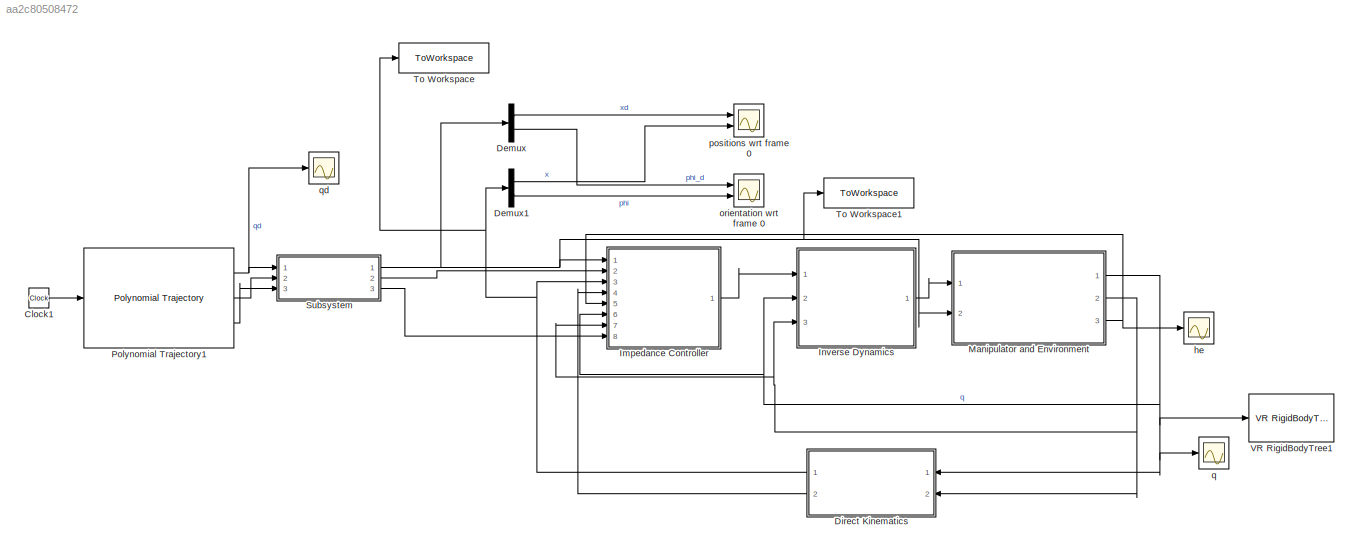
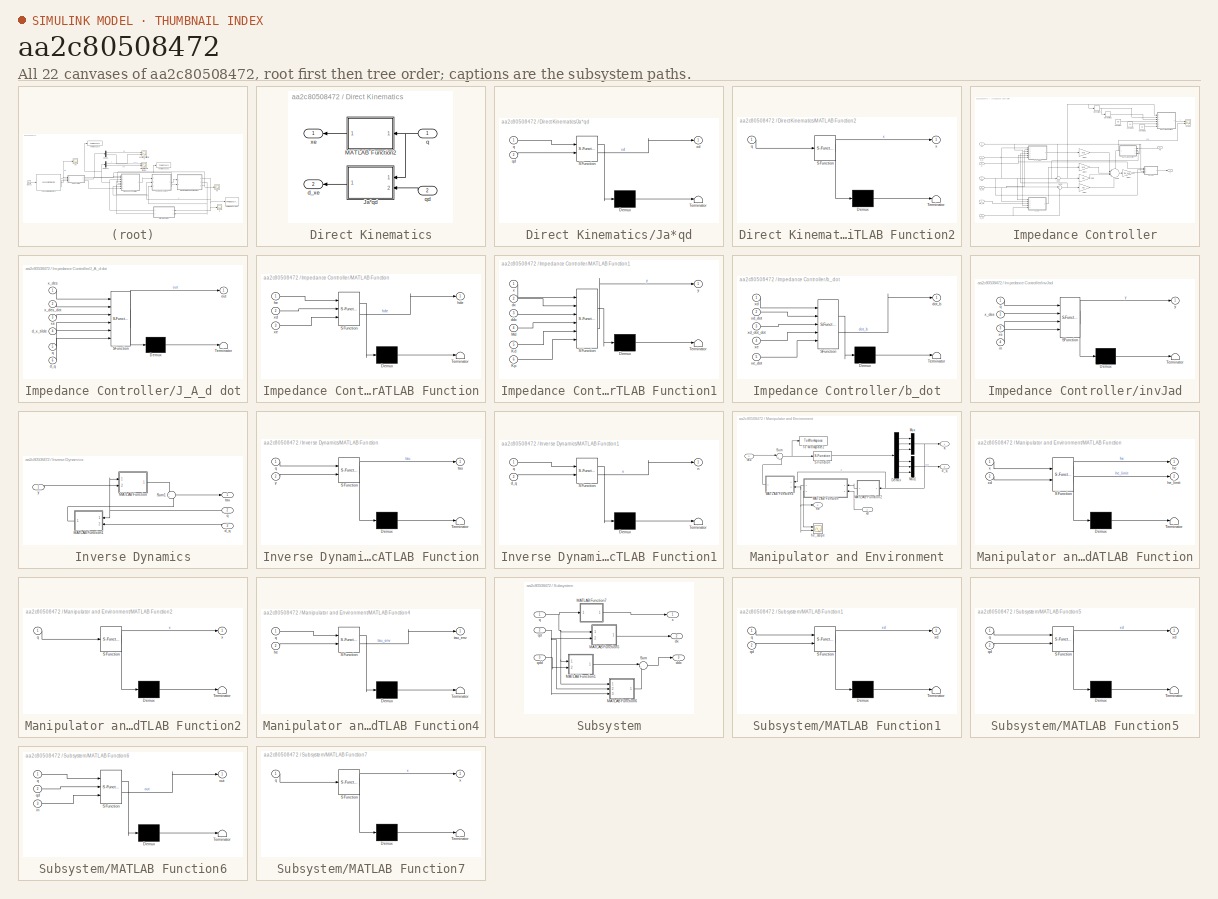
[diagram: thumbnail index - all 22 canvases of the model, root first then tree order]
MODEL slx_aa2c80508472
KIND model
CONFIG AbsTol = auto
CONFIG EnableMultiTasking = off
CONFIG FixedStep = 0.005
CONFIG MaxStep = auto
CONFIG MinStep = auto
CONFIG RelTol = 1e-3
CONFIG SampleTimeConstraint = Unconstrained
CONFIG SolverName = FixedStepAuto
CONFIG StartTime = 0.0
CONFIG StopTime = 5
BLOCK [Clock] Clock1
BLOCK [Demux] Demux
  Outputs = 2
  Ports = [1, 2]
BLOCK [Demux] Demux1
  Outputs = 2
  Ports = [1, 2]
BLOCK [SubSystem] Direct Kinematics
  Ports = [2, 2]
  RequestExecContextInheritance = off
BLOCK [SubSystem] Direct Kinematics/Ja*qd
  ErrorFcn = Stateflow.Translate.translate
  PermitHierarchicalResolution = ExplicitOnly
  Ports = [2, 1]
  RequestExecContextInheritance = off
  SFBlockType = MATLAB Function
  TreatAsAtomicUnit = on
BLOCK [Demux] Direct Kinematics/Ja*qd/ Demux 
  Outputs = 1
  Ports = [1, 1]
BLOCK [S-Function] Direct Kinematics/Ja*qd/ SFunction 
  EnableBusSupport = on
  FunctionName = sf_sfun
  Parameters = param
  PortCounts = [2 2]
  Ports = [2, 2]
  SFcnIsStateOwnerBlock = off
  SFunctionDeploymentMode = off
  Tag = Stateflow S-Function 12
BLOCK [Terminator] Direct Kinematics/Ja*qd/ Terminator 
BLOCK [Inport] Direct Kinematics/Ja*qd/q
BLOCK [Inport] Direct Kinematics/Ja*qd/qd
  Port = 2
BLOCK [Outport] Direct Kinematics/Ja*qd/xd
BLOCK [SubSystem] Direct Kinematics/MATLAB Function2
  ErrorFcn = Stateflow.Translate.translate
  PermitHierarchicalResolution = ExplicitOnly
  Ports = [1, 1]
  RequestExecContextInheritance = off
  SFBlockType = MATLAB Function
  TreatAsAtomicUnit = on
BLOCK [Demux] Direct Kinematics/MATLAB Function2/ Demux 
  Outputs = 1
  Ports = [1, 1]
BLOCK [S-Function] Direct Kinematics/MATLAB Function2/ SFunction 
  EnableBusSupport = on
  FunctionName = sf_sfun
  Parameters = param
  PortCounts = [1 2]
  Ports = [1, 2]
  SFcnIsStateOwnerBlock = off
  SFunctionDeploymentMode = off
  Tag = Stateflow S-Function 11
BLOCK [Terminator] Direct Kinematics/MATLAB Function2/ Terminator 
BLOCK [Inport] Direct Kinematics/MATLAB Function2/q
BLOCK [Outport] Direct Kinematics/MATLAB Function2/x
BLOCK [Outport] Direct Kinematics/d_xe
  Port = 2
BLOCK [Inport] Direct Kinematics/q
BLOCK [Inport] Direct Kinematics/qd
  Port = 2
BLOCK [Outport] Direct Kinematics/xe
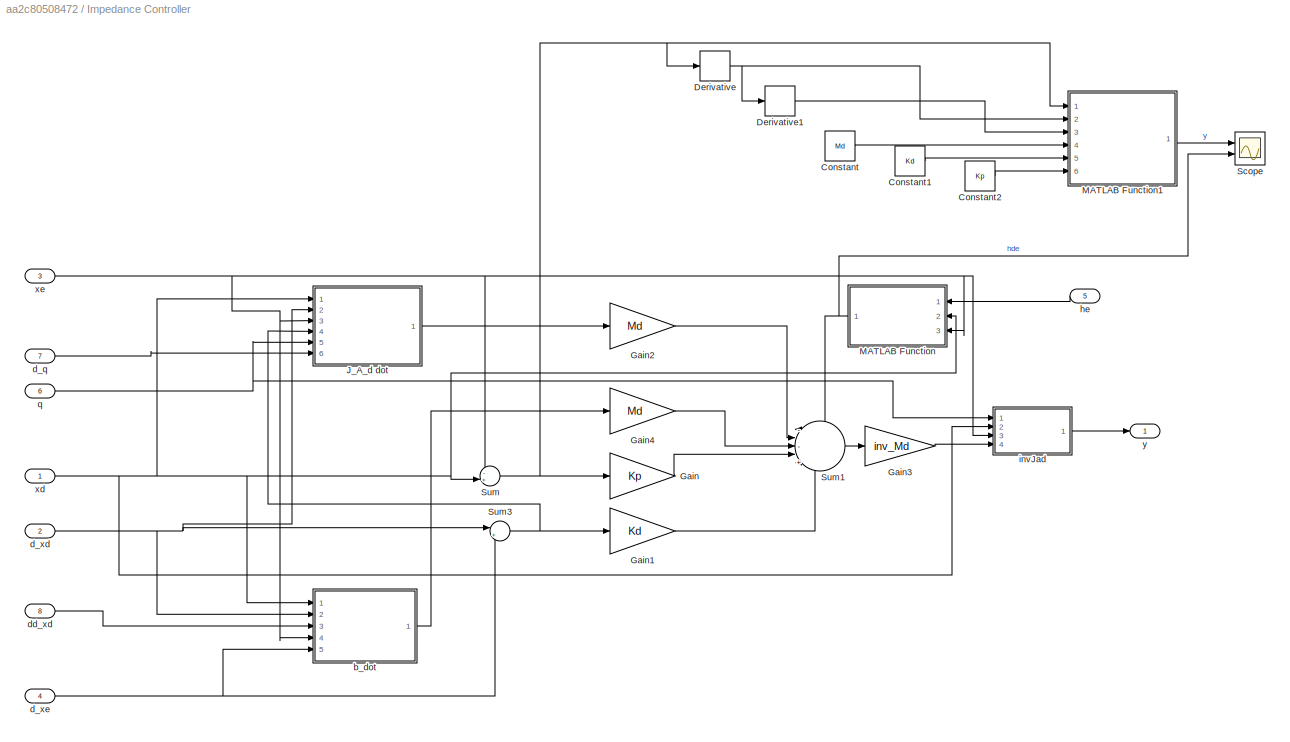
BLOCK [SubSystem] Impedance Controller
  Ports = [8, 1]
  RequestExecContextInheritance = off
BLOCK [Constant] Impedance Controller/Constant
  Commented = on
  Value = Md
BLOCK [Constant] Impedance Controller/Constant1
  Commented = on
  Value = Kd
BLOCK [Constant] Impedance Controller/Constant2
  Commented = on
  Value = Kp
BLOCK [Derivative] Impedance Controller/Derivative
  Commented = on
BLOCK [Derivative] Impedance Controller/Derivative1
  Commented = on
BLOCK [Gain] Impedance Controller/Gain
  Gain = Kp
  Multiplication = Matrix(K*u)
BLOCK [Gain] Impedance Controller/Gain1
  Gain = Kd
  Multiplication = Matrix(K*u)
BLOCK [Gain] Impedance Controller/Gain2
  Gain = Md
  Multiplication = Matrix(K*u)
BLOCK [Gain] Impedance Controller/Gain3
  Gain = inv_Md
  Multiplication = Matrix(K*u)
BLOCK [Gain] Impedance Controller/Gain4
  Gain = Md
  Multiplication = Matrix(K*u)
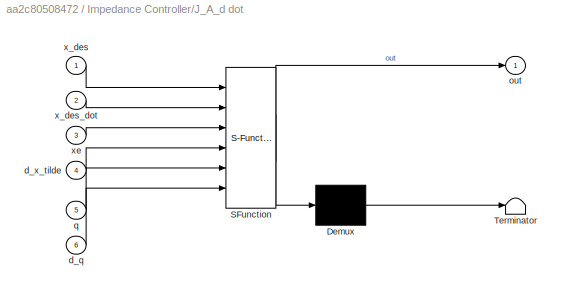
BLOCK [SubSystem] Impedance Controller/J_A_d dot
  ErrorFcn = Stateflow.Translate.translate
  PermitHierarchicalResolution = ExplicitOnly
  Ports = [6, 1]
  RequestExecContextInheritance = off
  SFBlockType = MATLAB Function
  TreatAsAtomicUnit = on
BLOCK [Demux] Impedance Controller/J_A_d dot/ Demux 
  Outputs = 1
  Ports = [1, 1]
BLOCK [S-Function] Impedance Controller/J_A_d dot/ SFunction 
  EnableBusSupport = on
  FunctionName = sf_sfun
  Parameters = param
  PortCounts = [6 2]
  Ports = [6, 2]
  SFcnIsStateOwnerBlock = off
  SFunctionDeploymentMode = off
  Tag = Stateflow S-Function 13
BLOCK [Terminator] Impedance Controller/J_A_d dot/ Terminator 
BLOCK [Inport] Impedance Controller/J_A_d dot/d_q
  Port = 6
BLOCK [Inport] Impedance Controller/J_A_d dot/d_x_tilde
  Port = 4
BLOCK [Outport] Impedance Controller/J_A_d dot/out
BLOCK [Inport] Impedance Controller/J_A_d dot/q
  Port = 5
BLOCK [Inport] Impedance Controller/J_A_d dot/x_des
BLOCK [Inport] Impedance Controller/J_A_d dot/x_des_dot
  Port = 2
BLOCK [Inport] Impedance Controller/J_A_d dot/xe
  Port = 3
BLOCK [SubSystem] Impedance Controller/MATLAB Function
  ErrorFcn = Stateflow.Translate.translate
  PermitHierarchicalResolution = ExplicitOnly
  Ports = [3, 1]
  RequestExecContextInheritance = off
  SFBlockType = MATLAB Function
  TreatAsAtomicUnit = on
BLOCK [Demux] Impedance Controller/MATLAB Function/ Demux 
  Outputs = 1
  Ports = [1, 1]
BLOCK [S-Function] Impedance Controller/MATLAB Function/ SFunction 
  EnableBusSupport = on
  FunctionName = sf_sfun
  PortCounts = [3 2]
  Ports = [3, 2]
  SFcnIsStateOwnerBlock = off
  SFunctionDeploymentMode = off
  Tag = Stateflow S-Function 10
BLOCK [Terminator] Impedance Controller/MATLAB Function/ Terminator 
BLOCK [Outport] Impedance Controller/MATLAB Function/hde
BLOCK [Inport] Impedance Controller/MATLAB Function/he
BLOCK [Inport] Impedance Controller/MATLAB Function/xd
  Port = 2
BLOCK [Inport] Impedance Controller/MATLAB Function/xe
  Port = 3
BLOCK [SubSystem] Impedance Controller/MATLAB Function1
  Commented = on
  ErrorFcn = Stateflow.Translate.translate
  PermitHierarchicalResolution = ExplicitOnly
  Ports = [6, 1]
  RequestExecContextInheritance = off
  SFBlockType = MATLAB Function
  TreatAsAtomicUnit = on
BLOCK [Demux] Impedance Controller/MATLAB Function1/ Demux 
  Outputs = 1
  Ports = [1, 1]
BLOCK [S-Function] Impedance Controller/MATLAB Function1/ SFunction 
  EnableBusSupport = on
  FunctionName = sf_sfun
  PortCounts = [6 2]
  Ports = [6, 2]
  SFcnIsStateOwnerBlock = off
  SFunctionDeploymentMode = off
  Tag = Stateflow S-Function 6
BLOCK [Terminator] Impedance Controller/MATLAB Function1/ Terminator 
BLOCK [Inport] Impedance Controller/MATLAB Function1/Kd
  Port = 5
BLOCK [Inport] Impedance Controller/MATLAB Function1/Kp
  Port = 6
BLOCK [Inport] Impedance Controller/MATLAB Function1/Md
  Port = 4
BLOCK [Inport] Impedance Controller/MATLAB Function1/ddx
  Port = 3
BLOCK [Inport] Impedance Controller/MATLAB Function1/dx
  Port = 2
BLOCK [Inport] Impedance Controller/MATLAB Function1/x
BLOCK [Outport] Impedance Controller/MATLAB Function1/y
BLOCK [Scope] Impedance Controller/Scope
  Commented = on
  Floating = off
  NumInputPorts = 2
  Ports = [2]
  ScopeSpecificationString = Simulink.scopes.TimeScopeBlockCfg('CurrentConfiguration', extmgr.ConfigurationSet(extmgr.Configuration('Core','General UI',true),extmgr.Configuration('Core','Source UI',true),extmgr.Configuration('Sources','WiredSimulink',true,'DataLoggingVariableName','ScopeData1'),extmgr.Configuration('Visuals','Time Domain',true,'SerializedDisplays',{struct('MinYLimReal','-315736.79481','MaxYLimReal','315729.52...<+1851ch>
BLOCK [Sum] Impedance Controller/Sum
  Inputs = -+|
  Ports = [2, 1]
BLOCK [Sum] Impedance Controller/Sum1
  Inputs = -|-|+|+|+
  Ports = [5, 1]
BLOCK [Sum] Impedance Controller/Sum3
  Inputs = |+-
  Ports = [2, 1]
BLOCK [SubSystem] Impedance Controller/b_dot
  ErrorFcn = Stateflow.Translate.translate
  PermitHierarchicalResolution = ExplicitOnly
  Ports = [5, 1]
  RequestExecContextInheritance = off
  SFBlockType = MATLAB Function
  TreatAsAtomicUnit = on
BLOCK [Demux] Impedance Controller/b_dot/ Demux 
  Outputs = 1
  Ports = [1, 1]
BLOCK [S-Function] Impedance Controller/b_dot/ SFunction 
  EnableBusSupport = on
  FunctionName = sf_sfun
  PortCounts = [5 2]
  Ports = [5, 2]
  SFcnIsStateOwnerBlock = off
  SFunctionDeploymentMode = off
  Tag = Stateflow S-Function 14
BLOCK [Terminator] Impedance Controller/b_dot/ Terminator 
BLOCK [Outport] Impedance Controller/b_dot/dot_b
BLOCK [Inport] Impedance Controller/b_dot/xd
BLOCK [Inport] Impedance Controller/b_dot/xd_dot
  Port = 2
BLOCK [Inport] Impedance Controller/b_dot/xd_dot_dot
  Port = 3
BLOCK [Inport] Impedance Controller/b_dot/xe
  Port = 4
BLOCK [Inport] Impedance Controller/b_dot/xe_dot
  Port = 5
BLOCK [Inport] Impedance Controller/d_q
  NameLocation = top
  Port = 7
BLOCK [Inport] Impedance Controller/d_xd
  Port = 2
BLOCK [Inport] Impedance Controller/d_xe
  NameLocation = top
  Port = 4
BLOCK [Inport] Impedance Controller/dd_xd
  Port = 8
BLOCK [Inport] Impedance Controller/he
  Port = 5
BLOCK [SubSystem] Impedance Controller/invJad
  ErrorFcn = Stateflow.Translate.translate
  PermitHierarchicalResolution = ExplicitOnly
  Ports = [4, 1]
  RequestExecContextInheritance = off
  SFBlockType = MATLAB Function
  TreatAsAtomicUnit = on
BLOCK [Demux] Impedance Controller/invJad/ Demux 
  Outputs = 1
  Ports = [1, 1]
BLOCK [S-Function] Impedance Controller/invJad/ SFunction 
  EnableBusSupport = on
  FunctionName = sf_sfun
  Parameters = param
  PortCounts = [4 2]
  Ports = [4, 2]
  SFcnIsStateOwnerBlock = off
  SFunctionDeploymentMode = off
  Tag = Stateflow S-Function 9
BLOCK [Terminator] Impedance Controller/invJad/ Terminator 
BLOCK [Inport] Impedance Controller/invJad/in
  Port = 4
BLOCK [Inport] Impedance Controller/invJad/q
BLOCK [Inport] Impedance Controller/invJad/x_des
  Port = 2
BLOCK [Inport] Impedance Controller/invJad/xe
  Port = 3
BLOCK [Outport] Impedance Controller/invJad/y
BLOCK [Inport] Impedance Controller/q
  NameLocation = top
  Port = 6
BLOCK [Inport] Impedance Controller/xd
BLOCK [Inport] Impedance Controller/xe
  NameLocation = top
  Port = 3
BLOCK [Outport] Impedance Controller/y
BLOCK [SubSystem] Inverse Dynamics
  Ports = [3, 1]
  RequestExecContextInheritance = off
BLOCK [SubSystem] Inverse Dynamics/MATLAB Function
  ErrorFcn = Stateflow.Translate.translate
  PermitHierarchicalResolution = ExplicitOnly
  Ports = [2, 1]
  RequestExecContextInheritance = off
  SFBlockType = MATLAB Function
  TreatAsAtomicUnit = on
BLOCK [Demux] Inverse Dynamics/MATLAB Function/ Demux 
  Outputs = 1
  Ports = [1, 1]
BLOCK [S-Function] Inverse Dynamics/MATLAB Function/ SFunction 
  EnableBusSupport = on
  FunctionName = sf_sfun
  Parameters = param
  PortCounts = [2 2]
  Ports = [2, 2]
  SFcnIsStateOwnerBlock = off
  SFunctionDeploymentMode = off
  Tag = Stateflow S-Function 8
BLOCK [Terminator] Inverse Dynamics/MATLAB Function/ Terminator 
BLOCK [Inport] Inverse Dynamics/MATLAB Function/q
BLOCK [Outport] Inverse Dynamics/MATLAB Function/tau
BLOCK [Inport] Inverse Dynamics/MATLAB Function/y
  Port = 2
BLOCK [SubSystem] Inverse Dynamics/MATLAB Function1
  ErrorFcn = Stateflow.Translate.translate
  PermitHierarchicalResolution = ExplicitOnly
  Ports = [2, 1]
  RequestExecContextInheritance = off
  SFBlockType = MATLAB Function
  TreatAsAtomicUnit = on
BLOCK [Demux] Inverse Dynamics/MATLAB Function1/ Demux 
  Outputs = 1
  Ports = [1, 1]
BLOCK [S-Function] Inverse Dynamics/MATLAB Function1/ SFunction 
  EnableBusSupport = on
  FunctionName = sf_sfun
  Parameters = param
  PortCounts = [2 2]
  Ports = [2, 2]
  SFcnIsStateOwnerBlock = off
  SFunctionDeploymentMode = off
  Tag = Stateflow S-Function 15
BLOCK [Terminator] Inverse Dynamics/MATLAB Function1/ Terminator 
BLOCK [Inport] Inverse Dynamics/MATLAB Function1/d_q
  Port = 2
BLOCK [Outport] Inverse Dynamics/MATLAB Function1/n
BLOCK [Inport] Inverse Dynamics/MATLAB Function1/q
BLOCK [Sum] Inverse Dynamics/Sum1
  Ports = [2, 1]
BLOCK [Inport] Inverse Dynamics/d_q
  Port = 3
BLOCK [Inport] Inverse Dynamics/q
  Port = 2
BLOCK [Outport] Inverse Dynamics/tau
BLOCK [Inport] Inverse Dynamics/y
BLOCK [SubSystem] Manipulator and Environment
  Ports = [2, 3]
  RequestExecContextInheritance = off
BLOCK [Demux] Manipulator and Environment/Demux
  Outputs = 6
  Ports = [1, 6]
BLOCK [SubSystem] Manipulator and Environment/MATLAB Function
  ErrorFcn = Stateflow.Translate.translate
  PermitHierarchicalResolution = ExplicitOnly
  Ports = [2, 2]
  RequestExecContextInheritance = off
  SFBlockType = MATLAB Function
  TreatAsAtomicUnit = on
BLOCK [Demux] Manipulator and Environment/MATLAB Function/ Demux 
  Outputs = 1
  Ports = [1, 1]
BLOCK [S-Function] Manipulator and Environment/MATLAB Function/ SFunction 
  EnableBusSupport = on
  FunctionName = sf_sfun
  Parameters = param
  PortCounts = [2 3]
  Ports = [2, 3]
  SFcnIsStateOwnerBlock = off
  SFunctionDeploymentMode = off
  Tag = Stateflow S-Function 17
BLOCK [Terminator] Manipulator and Environment/MATLAB Function/ Terminator 
BLOCK [Outport] Manipulator and Environment/MATLAB Function/he
BLOCK [Outport] Manipulator and Environment/MATLAB Function/he_limit
  Port = 2
BLOCK [Inport] Manipulator and Environment/MATLAB Function/x
BLOCK [Inport] Manipulator and Environment/MATLAB Function/xd
  Port = 2
BLOCK [SubSystem] Manipulator and Environment/MATLAB Function2
  ErrorFcn = Stateflow.Translate.translate
  PermitHierarchicalResolution = ExplicitOnly
  Ports = [1, 1]
  RequestExecContextInheritance = off
  SFBlockType = MATLAB Function
  TreatAsAtomicUnit = on
BLOCK [Demux] Manipulator and Environment/MATLAB Function2/ Demux 
  Outputs = 1
  Ports = [1, 1]
BLOCK [S-Function] Manipulator and Environment/MATLAB Function2/ SFunction 
  EnableBusSupport = on
  FunctionName = sf_sfun
  Parameters = param
  PortCounts = [1 2]
  Ports = [1, 2]
  SFcnIsStateOwnerBlock = off
  SFunctionDeploymentMode = off
  Tag = Stateflow S-Function 18
BLOCK [Terminator] Manipulator and Environment/MATLAB Function2/ Terminator 
BLOCK [Inport] Manipulator and Environment/MATLAB Function2/q
BLOCK [Outport] Manipulator and Environment/MATLAB Function2/x
BLOCK [SubSystem] Manipulator and Environment/MATLAB Function4
  ErrorFcn = Stateflow.Translate.translate
  PermitHierarchicalResolution = ExplicitOnly
  Ports = [2, 1]
  RequestExecContextInheritance = off
  SFBlockType = MATLAB Function
  TreatAsAtomicUnit = on
BLOCK [Demux] Manipulator and Environment/MATLAB Function4/ Demux 
  Outputs = 1
  Ports = [1, 1]
BLOCK [S-Function] Manipulator and Environment/MATLAB Function4/ SFunction 
  EnableBusSupport = on
  FunctionName = sf_sfun
  Parameters = param
  PortCounts = [2 2]
  Ports = [2, 2]
  SFcnIsStateOwnerBlock = off
  SFunctionDeploymentMode = off
  Tag = Stateflow S-Function 5
BLOCK [Terminator] Manipulator and Environment/MATLAB Function4/ Terminator 
BLOCK [Inport] Manipulator and Environment/MATLAB Function4/he
  Port = 2
BLOCK [Inport] Manipulator and Environment/MATLAB Function4/q
BLOCK [Outport] Manipulator and Environment/MATLAB Function4/tau_env
BLOCK [Mux] Manipulator and Environment/Mux
  DisplayOption = bar
  Inputs = 3
  Ports = [3, 1]
BLOCK [Mux] Manipulator and Environment/Mux1
  DisplayOption = bar
  Inputs = 3
  Ports = [3, 1]
BLOCK [S-Function] Manipulator and Environment/S-Function
  EnableBusSupport = off
  FunctionName = Manipulator
  Parameters = param
  Ports = [1, 1]
  SFcnIsStateOwnerBlock = off
  SFunctionDeploymentMode = off
BLOCK [Sum] Manipulator and Environment/Sum
  Inputs = |++
  Ports = [2, 1]
BLOCK [ToWorkspace] Manipulator and Environment/To Workspace2
  FixptAsFi = on
  MaxDataPoints = inf
  Ports = [1]
  SampleTime = -1
  SaveFormat = Timeseries
  VariableName = tau
BLOCK [Outport] Manipulator and Environment/d_q
  Port = 2
BLOCK [Outport] Manipulator and Environment/he
  Port = 3
BLOCK [Scope] Manipulator and Environment/he_scope
  Floating = off
  NumInputPorts = 2
  Ports = [2]
  ScopeSpecificationString = Simulink.scopes.TimeScopeBlockCfg('CurrentConfiguration', extmgr.ConfigurationSet(extmgr.Configuration('Core','General UI',true),extmgr.Configuration('Core','Source UI',true),extmgr.Configuration('Sources','WiredSimulink',true,'DataLoggingVariableName','ScopeData1'),extmgr.Configuration('Visuals','Time Domain',true,'SerializedDisplays',{struct('MinYLimReal','-0.75','MaxYLimReal','6.75','YLabelReal...<+1996ch>
BLOCK [Outport] Manipulator and Environment/q
BLOCK [Inport] Manipulator and Environment/tau
BLOCK [Inport] Manipulator and Environment/xd
  NameLocation = top
  Port = 2
BLOCK [Reference] Polynomial Trajectory1  REF=robotcorelib/Polynomial Trajectory
  Ports = [1, 3]
  SourceBlock = robotcorelib/Polynomial Trajectory
  SourceProductBaseCode = NV,RO,RR,UV
  SourceType = robotics.slcore.internal.block.PolyTrajSys
BLOCK [SubSystem] Subsystem
  Ports = [3, 3]
  RequestExecContextInheritance = off
BLOCK [SubSystem] Subsystem/MATLAB Function1
  ErrorFcn = Stateflow.Translate.translate
  PermitHierarchicalResolution = ExplicitOnly
  Ports = [2, 1]
  RequestExecContextInheritance = off
  SFBlockType = MATLAB Function
  TreatAsAtomicUnit = on
BLOCK [Demux] Subsystem/MATLAB Function1/ Demux 
  Outputs = 1
  Ports = [1, 1]
BLOCK [S-Function] Subsystem/MATLAB Function1/ SFunction 
  EnableBusSupport = on
  FunctionName = sf_sfun
  Parameters = param
  PortCounts = [2 2]
  Ports = [2, 2]
  SFcnIsStateOwnerBlock = off
  SFunctionDeploymentMode = off
  Tag = Stateflow S-Function 1
BLOCK [Terminator] Subsystem/MATLAB Function1/ Terminator 
BLOCK [Inport] Subsystem/MATLAB Function1/q
BLOCK [Inport] Subsystem/MATLAB Function1/qd
  Port = 2
BLOCK [Outport] Subsystem/MATLAB Function1/xd
BLOCK [SubSystem] Subsystem/MATLAB Function5
  ErrorFcn = Stateflow.Translate.translate
  PermitHierarchicalResolution = ExplicitOnly
  Ports = [2, 1]
  RequestExecContextInheritance = off
  SFBlockType = MATLAB Function
  TreatAsAtomicUnit = on
BLOCK [Demux] Subsystem/MATLAB Function5/ Demux 
  Outputs = 1
  Ports = [1, 1]
BLOCK [S-Function] Subsystem/MATLAB Function5/ SFunction 
  EnableBusSupport = on
  FunctionName = sf_sfun
  Parameters = param
  PortCounts = [2 2]
  Ports = [2, 2]
  SFcnIsStateOwnerBlock = off
  SFunctionDeploymentMode = off
  Tag = Stateflow S-Function 2
BLOCK [Terminator] Subsystem/MATLAB Function5/ Terminator 
BLOCK [Inport] Subsystem/MATLAB Function5/q
BLOCK [Inport] Subsystem/MATLAB Function5/qd
  Port = 2
BLOCK [Outport] Subsystem/MATLAB Function5/xd
BLOCK [SubSystem] Subsystem/MATLAB Function6
  ErrorFcn = Stateflow.Translate.translate
  PermitHierarchicalResolution = ExplicitOnly
  Ports = [3, 1]
  RequestExecContextInheritance = off
  SFBlockType = MATLAB Function
  TreatAsAtomicUnit = on
BLOCK [Demux] Subsystem/MATLAB Function6/ Demux 
  Outputs = 1
  Ports = [1, 1]
BLOCK [S-Function] Subsystem/MATLAB Function6/ SFunction 
  EnableBusSupport = on
  FunctionName = sf_sfun
  Parameters = param
  PortCounts = [3 2]
  Ports = [3, 2]
  SFcnIsStateOwnerBlock = off
  SFunctionDeploymentMode = off
  Tag = Stateflow S-Function 3
BLOCK [Terminator] Subsystem/MATLAB Function6/ Terminator 
BLOCK [Inport] Subsystem/MATLAB Function6/in
  Port = 3
BLOCK [Outport] Subsystem/MATLAB Function6/out
BLOCK [Inport] Subsystem/MATLAB Function6/q
BLOCK [Inport] Subsystem/MATLAB Function6/qd
  Port = 2
BLOCK [SubSystem] Subsystem/MATLAB Function7
  ErrorFcn = Stateflow.Translate.translate
  NameLocation = top
  PermitHierarchicalResolution = ExplicitOnly
  Ports = [1, 1]
  RequestExecContextInheritance = off
  SFBlockType = MATLAB Function
  TreatAsAtomicUnit = on
BLOCK [Demux] Subsystem/MATLAB Function7/ Demux 
  Outputs = 1
  Ports = [1, 1]
BLOCK [S-Function] Subsystem/MATLAB Function7/ SFunction 
  EnableBusSupport = on
  FunctionName = sf_sfun
  Parameters = param
  PortCounts = [1 2]
  Ports = [1, 2]
  SFcnIsStateOwnerBlock = off
  SFunctionDeploymentMode = off
  Tag = Stateflow S-Function 4
BLOCK [Terminator] Subsystem/MATLAB Function7/ Terminator 
BLOCK [Inport] Subsystem/MATLAB Function7/q
BLOCK [Outport] Subsystem/MATLAB Function7/x
BLOCK [Sum] Subsystem/Sum
  Inputs = |++
  Ports = [2, 1]
BLOCK [Outport] Subsystem/ddx
  Port = 3
BLOCK [Outport] Subsystem/dx
  Port = 2
BLOCK [Inport] Subsystem/q
BLOCK [Inport] Subsystem/qd
  Port = 2
BLOCK [Inport] Subsystem/qdd
  Port = 3
BLOCK [Outport] Subsystem/x
BLOCK [ToWorkspace] To Workspace
  FixptAsFi = on
  MaxDataPoints = inf
  Ports = [1]
  SampleTime = -1
  SaveFormat = Timeseries
  VariableName = x
BLOCK [ToWorkspace] To Workspace1
  FixptAsFi = on
  MaxDataPoints = inf
  Ports = [1]
  SampleTime = -1
  SaveFormat = Timeseries
  VariableName = xd
BLOCK [Reference] VR RigidBodyTree1  REF=vrlib/VR RigidBodyTree
  Commented = on
  Ports = [1]
  SourceBlock = vrlib/VR RigidBodyTree
  SourceProductBaseCode = SL
  SourceType = VR RigidBodyTree
BLOCK [Scope] he
  Floating = off
  NumInputPorts = 1
  Ports = [1]
  ScopeSpecificationString = Simulink.scopes.TimeScopeBlockCfg('CurrentConfiguration', extmgr.ConfigurationSet(extmgr.Configuration('Core','General UI',true),extmgr.Configuration('Core','Source UI',true),extmgr.Configuration('Sources','WiredSimulink',true,'DataLoggingVariableName','ScopeData2'),extmgr.Configuration('Visuals','Time Domain',true,'SerializedDisplays',{struct('MinYLimReal','-0.02218','MaxYLimReal','0.19959','YLab...<+1760ch>
BLOCK [Scope] orientation wrt frame 0
  Floating = off
  NumInputPorts = 2
  Ports = [2]
  ScopeSpecificationString = Simulink.scopes.TimeScopeBlockCfg('CurrentConfiguration', extmgr.ConfigurationSet(extmgr.Configuration('Core','General UI',true),extmgr.Configuration('Core','Source UI',true),extmgr.Configuration('Sources','WiredSimulink',true,'DataLoggingVariableName','ScopeData1'),extmgr.Configuration('Visuals','Time Domain',true,'SerializedDisplays',{struct('MinYLimReal','-3.33794','MaxYLimReal','-1.37445','YLa...<+1602ch>
BLOCK [Scope] positions wrt frame 0
  Floating = off
  NumInputPorts = 2
  Ports = [2]
  ScopeSpecificationString = Simulink.scopes.TimeScopeBlockCfg('CurrentConfiguration', extmgr.ConfigurationSet(extmgr.Configuration('Core','General UI',true),extmgr.Configuration('Core','Source UI',true),extmgr.Configuration('Sources','WiredSimulink',true),extmgr.Configuration('Visuals','Time Domain',true,'SerializedDisplays',{struct('MinYLimReal','-0.08157','MaxYLimReal','0.73179','YLabelReal','','MinYLimMag','0.00000','MaxY...<+1593ch>
BLOCK [Scope] q
  Floating = off
  NumInputPorts = 1
  Ports = [1]
  ScopeSpecificationString = Simulink.scopes.TimeScopeBlockCfg('CurrentConfiguration', extmgr.ConfigurationSet(extmgr.Configuration('Core','General UI',true),extmgr.Configuration('Core','Source UI',true),extmgr.Configuration('Sources','WiredSimulink',true,'DataLoggingVariableName','ScopeData4'),extmgr.Configuration('Visuals','Time Domain',true,'SerializedDisplays',{struct('MinYLimReal','-0.00014','MaxYLimReal','0.00018','YLab...<+1457ch>
BLOCK [Scope] qd
  Floating = off
  NumInputPorts = 1
  Ports = [1]
  ScopeSpecificationString = Simulink.scopes.TimeScopeBlockCfg('CurrentConfiguration', extmgr.ConfigurationSet(extmgr.Configuration('Core','General UI',true),extmgr.Configuration('Core','Source UI',true),extmgr.Configuration('Sources','WiredSimulink',true,'DataLoggingVariableName','ScopeData3'),extmgr.Configuration('Visuals','Time Domain',true,'SerializedDisplays',{struct('MinYLimReal','-0.125','MaxYLimReal','0.125','YLabelRe...<+1477ch>
LINE Clock1:1 -> Polynomial Trajectory1:1
LINE Demux1:1 -> positions wrt frame 0:2
LINE Demux1:2 -> orientation wrt frame 0:2
LINE Demux:1 -> positions wrt frame 0:1
LINE Demux:2 -> orientation wrt frame 0:1
LINE Direct Kinematics/Ja*qd:1 -> Direct Kinematics/d_xe:1
LINE Direct Kinematics/MATLAB Function2:1 -> Direct Kinematics/xe:1
NET Direct Kinematics/q:1 -> Direct Kinematics/Ja*qd:1, Direct Kinematics/MATLAB Function2:1
LINE Direct Kinematics/qd:1 -> Direct Kinematics/Ja*qd:2
NET Direct Kinematics:1 -> Demux1:1, Impedance Controller:3, To Workspace:1
LINE Direct Kinematics:2 -> Impedance Controller:4
LINE Impedance Controller/Constant1:1 -> Impedance Controller/MATLAB Function1:5
LINE Impedance Controller/Constant2:1 -> Impedance Controller/MATLAB Function1:6
LINE Impedance Controller/Constant:1 -> Impedance Controller/MATLAB Function1:4
LINE Impedance Controller/Derivative1:1 -> Impedance Controller/MATLAB Function1:3
NET Impedance Controller/Derivative:1 -> Impedance Controller/Derivative1:1, Impedance Controller/MATLAB Function1:2
LINE Impedance Controller/Gain1:1 -> Impedance Controller/Sum1:5
LINE Impedance Controller/Gain2:1 -> Impedance Controller/Sum1:2
LINE Impedance Controller/Gain3:1 -> Impedance Controller/invJad:4
LINE Impedance Controller/Gain4:1 -> Impedance Controller/Sum1:3
LINE Impedance Controller/Gain:1 -> Impedance Controller/Sum1:4
LINE Impedance Controller/J_A_d dot:1 -> Impedance Controller/Gain2:1
LINE Impedance Controller/MATLAB Function1:1 -> Impedance Controller/Scope:1
NET Impedance Controller/MATLAB Function:1 -> Impedance Controller/Scope:2, Impedance Controller/Sum1:1
LINE Impedance Controller/Sum1:1 -> Impedance Controller/Gain3:1
NET Impedance Controller/Sum3:1 -> Impedance Controller/Gain1:1, Impedance Controller/J_A_d dot:4
NET Impedance Controller/Sum:1 -> Impedance Controller/Derivative:1, Impedance Controller/Gain:1, Impedance Controller/MATLAB Function1:1
LINE Impedance Controller/b_dot:1 -> Impedance Controller/Gain4:1
LINE Impedance Controller/d_q:1 -> Impedance Controller/J_A_d dot:6
NET Impedance Controller/d_xd:1 -> Impedance Controller/J_A_d dot:2, Impedance Controller/Sum3:1, Impedance Controller/b_dot:2
NET Impedance Controller/d_xe:1 -> Impedance Controller/Sum3:2, Impedance Controller/b_dot:5
LINE Impedance Controller/dd_xd:1 -> Impedance Controller/b_dot:3
LINE Impedance Controller/he:1 -> Impedance Controller/MATLAB Function:1
LINE Impedance Controller/invJad:1 -> Impedance Controller/y:1
NET Impedance Controller/q:1 -> Impedance Controller/J_A_d dot:5, Impedance Controller/invJad:1
NET Impedance Controller/xd:1 -> Impedance Controller/J_A_d dot:1, Impedance Controller/MATLAB Function:2, Impedance Controller/Sum:2, Impedance Controller/b_dot:1, Impedance Controller/invJad:2
NET Impedance Controller/xe:1 -> Impedance Controller/J_A_d dot:3, Impedance Controller/MATLAB Function:3, Impedance Controller/Sum:1, Impedance Controller/b_dot:4, Impedance Controller/invJad:3
LINE Impedance Controller:1 -> Inverse Dynamics:1
LINE Inverse Dynamics/MATLAB Function1:1 -> Inverse Dynamics/Sum1:2
LINE Inverse Dynamics/MATLAB Function:1 -> Inverse Dynamics/Sum1:1
LINE Inverse Dynamics/Sum1:1 -> Inverse Dynamics/tau:1
LINE Inverse Dynamics/d_q:1 -> Inverse Dynamics/MATLAB Function1:2
NET Inverse Dynamics/q:1 -> Inverse Dynamics/MATLAB Function1:1, Inverse Dynamics/MATLAB Function:1
LINE Inverse Dynamics/y:1 -> Inverse Dynamics/MATLAB Function:2
LINE Inverse Dynamics:1 -> Manipulator and Environment:1
LINE Manipulator and Environment/Demux:1 -> Manipulator and Environment/Mux:1
LINE Manipulator and Environment/Demux:2 -> Manipulator and Environment/Mux:2
LINE Manipulator and Environment/Demux:3 -> Manipulator and Environment/Mux:3
LINE Manipulator and Environment/Demux:4 -> Manipulator and Environment/Mux1:1
LINE Manipulator and Environment/Demux:5 -> Manipulator and Environment/Mux1:2
LINE Manipulator and Environment/Demux:6 -> Manipulator and Environment/Mux1:3
LINE Manipulator and Environment/MATLAB Function2:1 -> Manipulator and Environment/MATLAB Function:1
LINE Manipulator and Environment/MATLAB Function4:1 -> Manipulator and Environment/Sum:2
NET Manipulator and Environment/MATLAB Function:1 -> Manipulator and Environment/MATLAB Function4:2, Manipulator and Environment/he:1, Manipulator and Environment/he_scope:2
LINE Manipulator and Environment/MATLAB Function:2 -> Manipulator and Environment/he_scope:1
LINE Manipulator and Environment/Mux1:1 -> Manipulator and Environment/d_q:1
NET Manipulator and Environment/Mux:1 -> Manipulator and Environment/MATLAB Function2:1, Manipulator and Environment/MATLAB Function4:1, Manipulator and Environment/q:1
LINE Manipulator and Environment/S-Function:1 -> Manipulator and Environment/Demux:1
NET Manipulator and Environment/Sum:1 -> Manipulator and Environment/S-Function:1, Manipulator and Environment/To Workspace2:1
LINE Manipulator and Environment/tau:1 -> Manipulator and Environment/Sum:1
LINE Manipulator and Environment/xd:1 -> Manipulator and Environment/MATLAB Function:2
NET Manipulator and Environment:1 -> Direct Kinematics:1, Impedance Controller:6, Inverse Dynamics:2, VR RigidBodyTree1:1, q:1
NET Manipulator and Environment:2 -> Direct Kinematics:2, Impedance Controller:7, Inverse Dynamics:3
NET Manipulator and Environment:3 -> Impedance Controller:5, he:1
NET Polynomial Trajectory1:1 -> Subsystem:1, qd:1
LINE Polynomial Trajectory1:2 -> Subsystem:2
LINE Polynomial Trajectory1:3 -> Subsystem:3
LINE Subsystem/MATLAB Function1:1 -> Subsystem/Sum:1
LINE Subsystem/MATLAB Function5:1 -> Subsystem/dx:1
LINE Subsystem/MATLAB Function6:1 -> Subsystem/Sum:2
LINE Subsystem/MATLAB Function7:1 -> Subsystem/x:1
LINE Subsystem/Sum:1 -> Subsystem/ddx:1
NET Subsystem/q:1 -> Subsystem/MATLAB Function1:1, Subsystem/MATLAB Function5:1, Subsystem/MATLAB Function6:1, Subsystem/MATLAB Function7:1
NET Subsystem/qd:1 -> Subsystem/MATLAB Function5:2, Subsystem/MATLAB Function6:2, Subsystem/MATLAB Function6:3
LINE Subsystem/qdd:1 -> Subsystem/MATLAB Function1:2
NET Subsystem:1 -> Demux:1, Impedance Controller:1, Manipulator and Environment:2, To Workspace1:1
LINE Subsystem:2 -> Impedance Controller:2
LINE Subsystem:3 -> Impedance Controller:8
note: NET lines group one-source signal fan-out (src -> all destinations, sorted); 1:1 wires keep LINE
CHART Direct Kinematics/MATLAB Function2 states=1 transitions=1
  STATE_LABEL 'eML_blk_kernel()'
  STATE_LABEL 'SCRIPT:\nfunction x = Kin(q,param)\n    x = Kinematics(q,param);\nend'
CHART Direct Kinematics/Ja*qd states=1 transitions=1
  STATE_LABEL 'eML_blk_kernel()'
  STATE_LABEL 'SCRIPT:\nfunction xd = Ja(q, qd, param)\n    Ja = AnalyticalJacobian(q,param);\n    xd = Ja * qd;\nend'
CHART Impedance Controller/J_A_d dot states=1 transitions=1
  STATE_LABEL 'eML_blk_kernel()'
  STATE_LABEL 'SCRIPT:\nfunction out = dot_Jad(x_des, x_des_dot, xe, d_x_tilde, q, d_q, param)    \n    % Get euler angles from x_tilde\n    x_tilde = x_des - xe;\n    O_d_e = - x_tilde(4:6);\n    phi = O_d_e(1);\n    theta = O_d_e(2);\n    \n    % Get velocities along euler angles\n    omega_d_e = - d_x_tilde(4:6);\n    theta_dot = omega_d_e(1);\n    phi_dot = omega_d_e(2);\n    \n    % Build rotation matrix\n    Rd = eul2ro...<+1604ch>'
CHART Impedance Controller/b_dot states=1 transitions=1
  STATE_LABEL 'eML_blk_kernel()'
  STATE_LABEL "SCRIPT:\nfunction dot_b = dot_b(xd, xd_dot, xd_dot_dot, xe, xe_dot)\n    Rd = eul2rotm(xd(4:6)', 'ZYZ');\n    \n    % Get x_tilde and x_tilde_dot\n    x_tilde = xd - xe;\n    d_x_tilde = xd_dot - xe_dot;\n    \n    % Get angles from x_tilde\n    phi_d_e = - x_tilde(4:6); \n    phi = phi_d_e(1);\n    theta = phi_d_e(2);\n    theta_dot = -d_x_tilde(2);\n    phi_dot = -d_x_tilde(1);\n    \n    % Get the transformat...<+1183ch>"
CHART Inverse Dynamics/MATLAB Function1 states=1 transitions=1
  STATE_LABEL 'eML_blk_kernel()'
  STATE_LABEL 'SCRIPT:\nfunction n = n(q,d_q,param)\n    % Compute C and G used in the model of n(q,d_q)\n    C = double(C_Lagrangian(q, d_q, param));\n    G = double(G_Lagrangian(q, param));\n    Fsv = param.Fsv;\n\n    n = C * d_q + G + Fsv * d_q;\nend\n'
CHART Subsystem/MATLAB Function1 states=1 transitions=1
  STATE_LABEL 'eML_blk_kernel()'
  STATE_LABEL 'SCRIPT:\nfunction xd = Ja(q, qd, param)\n    Ja = AnalyticalJacobian(q,param);\n    xd = Ja * qd;\nend'
CHART Manipulator and Environment/MATLAB Function states=1 transitions=1
  STATE_LABEL 'eML_blk_kernel()'
  STATE_LABEL 'SCRIPT:\nfunction [he, he_limit] = environment(x, xd, param)\n    if x(param.axis) >= param.wall \n\n        % set up the rest position frame\n        xr = zeros(6,1);\n        xr(param.axis) = param.wall;\n\n        xe = zeros(6,1);\n        xe(param.axis) = x(param.axis);\n\n        he = param.K * (xe - xr);\n        dx_rd = zeros(6,1);\n        dx_rd(param.axis) = xd(param.axis) - xr(param.axis);\n        % ...<+156ch>'
CHART Manipulator and Environment/MATLAB Function2 states=1 transitions=1
  STATE_LABEL 'eML_blk_kernel()'
  STATE_LABEL 'SCRIPT:\nfunction x = Kin(q,param)\n    x = Kinematics(q,param);\nend'
CHART Subsystem/MATLAB Function5 states=1 transitions=1
  STATE_LABEL 'eML_blk_kernel()'
  STATE_LABEL 'SCRIPT:\nfunction xd = Ja(q, qd, param)\n    Ja = AnalyticalJacobian(q,param);\n    xd = Ja * qd;\nend'
CHART Subsystem/MATLAB Function6 states=1 transitions=1
  STATE_LABEL 'eML_blk_kernel()'
  STATE_LABEL 'SCRIPT:\nfunction out = dot_Ja(q, qd, in, param)\n    d_Ja = AnalyticalJacobian_dot(q,qd,param);\n    out = d_Ja * in;\nend'
CHART Subsystem/MATLAB Function7 states=1 transitions=1
  STATE_LABEL 'eML_blk_kernel()'
  STATE_LABEL 'SCRIPT:\nfunction x = Kin(q,param)\n    x = Kinematics(q,param);\nend'
CHART Manipulator and Environment/MATLAB Function4 states=1 transitions=1
  STATE_LABEL 'eML_blk_kernel()'
  STATE_LABEL "SCRIPT:\nfunction tau_env = JT(q, he, param)\n    tau_env = -Jacobian(q, param)' * he;\nend"
CHART Impedance Controller/MATLAB Function1 states=1 transitions=1
  STATE_LABEL 'eML_blk_kernel()'
  STATE_LABEL 'SCRIPT:\nfunction y = eq(x, dx, ddx, Md, Kd, Kp)\n    y = Md*ddx + Kd*dx + Kp*x;\n'
CHART Inverse Dynamics/MATLAB Function states=1 transitions=1
  STATE_LABEL 'eML_blk_kernel()'
  STATE_LABEL 'SCRIPT:\nfunction tau = B(q,y,param)\n    B_matrix = B_Lagrangian(q, param);\n    tau =  B_matrix * y;\nend\n'
CHART Impedance Controller/invJad states=1 transitions=1
  STATE_LABEL 'eML_blk_kernel()'
  STATE_LABEL "SCRIPT:\nfunction y = invJad(q, x_des, xe, in, param)\n    x_tilde = x_des - xe;\n    Rd = eul2rotm(-x_tilde(4:6)','ZYZ');\n    angles = -x_tilde(4:6);\n    \n%     Compute Ta(phi_de) in this case ZYZ\n    ph = -angles(1);\n    th = -angles(2);\n    Ta =   [1, 0, 0, 0, 0, 0;\n            0, 1, 0, 0, 0, 0;\n            0, 0, 1, 0, 0, 0;\n            0, 0, 0, 0, -sin(ph), cos(ph) * sin(th);\n            0, 0, 0,...<+228ch>"
CHART Impedance Controller/MATLAB Function states=1 transitions=1
  STATE_LABEL 'eML_blk_kernel()'
  STATE_LABEL "SCRIPT:\nfunction hde = to_hde(he, xd, xe)\n    hde = zeros(6,1);\n    Rd_e = eul2rotm(((xd(4:6) - xe(4:6)))', 'ZYZ');\n    \n    hde(1:3) = Rd_e * he(1:3);\n    hde(4:6) = Rd_e * he(4:6);\nend\n\n"
CHART  states=0 transitions=0
CHART  states=0 transitions=0
CHART  states=0 transitions=0
CHART  states=0 transitions=0
CHART  states=0 transitions=0
CHART  states=0 transitions=0
CHART  states=0 transitions=0
CHART  states=0 transitions=0
CHART  states=0 transitions=0
CHART  states=0 transitions=0
CHART  states=0 transitions=0
CHART  states=0 transitions=0
CHART  states=0 transitions=0
CHART  states=0 transitions=0
CHART  states=0 transitions=0
CHART  states=0 transitions=0
